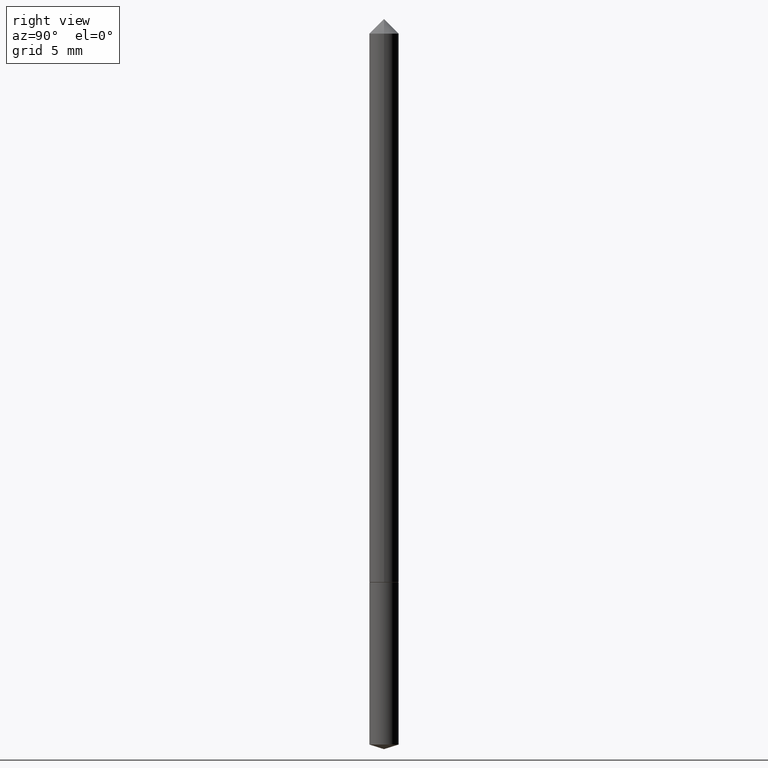
[diagram: clean part render]
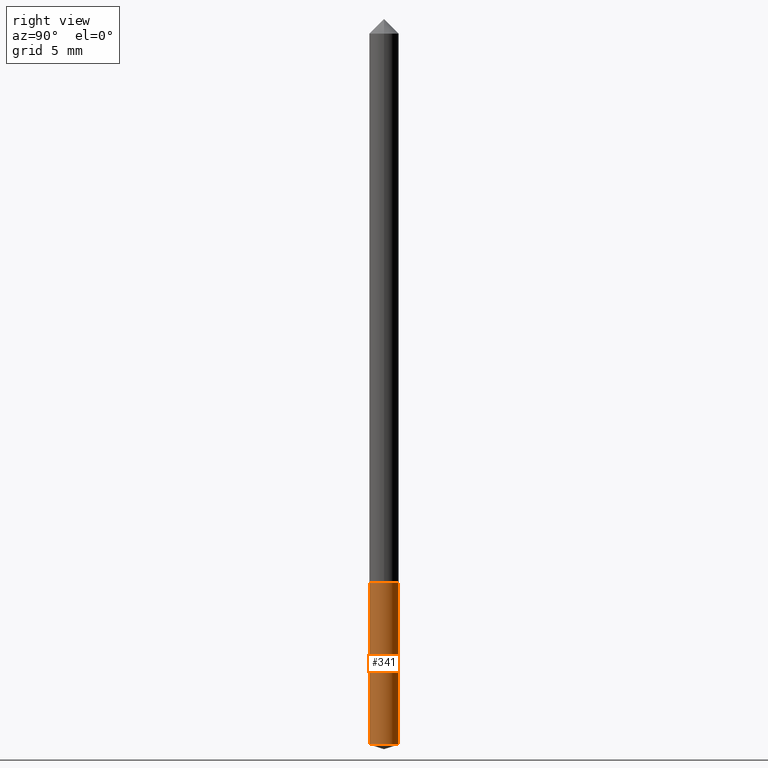
[diagram: same view with one face highlighted and labeled with its STEP entity id]
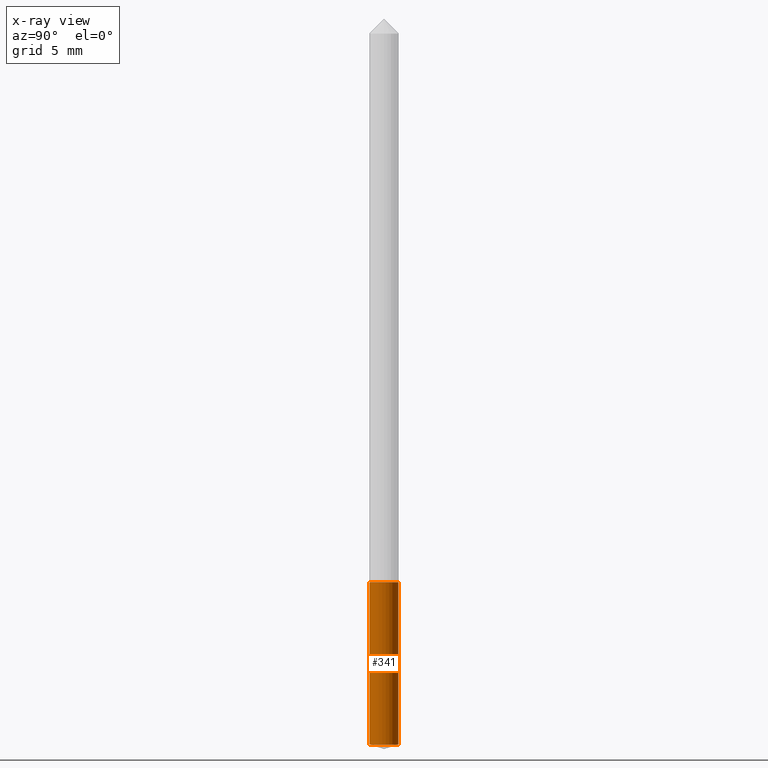
[diagram: x-ray of the same camera — body ghosted, the highlighted face saturated]
A machine part, right view. The second image highlights one B-rep face of the part: STEP entity #341.
The next image is the same camera in x-ray: the body ghosted, the highlighted face saturated — about 0% of this face is hidden behind the body in this view.
In plain terms, the highlighted cylindrical surface (edge-blend (fillet) strip) has radius 0.5994 mm, axis along (-0, 0, 1).
Its self-contained STEP definition (entity closure, byte-faithful):
#1 = CARTESIAN_POINT ( 'NONE',  ( 1.676880856394122855E-16, 0.02359999999999589509, -1.173658948582456452 ) ) ;
#36 = CYLINDRICAL_SURFACE ( 'NONE', #165, 0.02360000000000000292 ) ;
#40 = ORIENTED_EDGE ( 'NONE', *, *, #161, .T. ) ;
#48 = EDGE_CURVE ( 'NONE', #324, #321, #265, .T. ) ;
#53 = ORIENTED_EDGE ( 'NONE', *, *, #48, .F. ) ;
#56 = DIRECTION ( 'NONE',  ( -6.982962677686265133E-15, -1.000000000000000000, 5.787813545898861862E-15 ) ) ;
#63 = DIRECTION ( 'NONE',  ( -6.982962677686265133E-15, -1.000000000000000000, 5.787813545898861862E-15 ) ) ;
#76 = ORIENTED_EDGE ( 'NONE', *, *, #355, .F. ) ;
#91 = DIRECTION ( 'NONE',  ( -2.445339444315170528E-29, 3.491666592403757410E-15, 1.000000000000000000 ) ) ;
#103 = AXIS2_PLACEMENT_3D ( 'NONE', #284, #112, #56 ) ;
#112 = DIRECTION ( 'NONE',  ( -2.445339444315170528E-29, 3.491666592403757410E-15, 1.000000000000000000 ) ) ;
#115 = AXIS2_PLACEMENT_3D ( 'NONE', #178, #91, #63 ) ;
#140 = VERTEX_POINT ( 'NONE', #307 ) ;
#153 = DIRECTION ( 'NONE',  ( -2.445339444315170528E-29, 3.491666592403757410E-15, 1.000000000000000000 ) ) ;
#161 = EDGE_CURVE ( 'NONE', #189, #321, #175, .T. ) ;
#165 = AXIS2_PLACEMENT_3D ( 'NONE', #343, #153, #286 ) ;
#166 = EDGE_LOOP ( 'NONE', ( #350, #40, #53, #76 ) ) ;
#173 = CARTESIAN_POINT ( 'NONE',  ( 1.676880856394059499E-16, 0.02359999999999681450, -0.9133000000000002228 ) ) ;
#175 = LINE ( 'NONE', #173, #176 ) ;
#176 = VECTOR ( 'NONE', #285, 39.37007874015748143 ) ;
#178 = CARTESIAN_POINT ( 'NONE',  ( 2.870112667337990554E-29, -4.097856549564174586E-15, -1.173658948582456230 ) ) ;
#180 = CARTESIAN_POINT ( 'NONE',  ( -1.647979191933735680E-16, -0.02360000000000319134, -0.9132999999999998897 ) ) ;
#189 = VERTEX_POINT ( 'NONE', #1 ) ;
#206 = CARTESIAN_POINT ( 'NONE',  ( 1.676880856394123348E-16, 0.02359999999999681450, -0.9133000000000002228 ) ) ;
#209 = LINE ( 'NONE', #180, #306 ) ;
#212 = DIRECTION ( 'NONE',  ( -2.445339444315170528E-29, 3.491666592403757410E-15, 1.000000000000000000 ) ) ;
#236 = CARTESIAN_POINT ( 'NONE',  ( -1.647979191933735680E-16, -0.02360000000000319134, -0.9132999999999998897 ) ) ;
#253 = CIRCLE ( 'NONE', #115, 0.02360000000000000292 ) ;
#263 = FACE_OUTER_BOUND ( 'NONE', #166, .T. ) ;
#265 = CIRCLE ( 'NONE', #103, 0.02360000000000000292 ) ;
#273 = EDGE_CURVE ( 'NONE', #140, #189, #253, .T. ) ;
#284 = CARTESIAN_POINT ( 'NONE',  ( 2.233446660688885291E-29, -3.188769906765445031E-15, -0.9133000000000001117 ) ) ;
#285 = DIRECTION ( 'NONE',  ( -2.445339444315170528E-29, 3.491666592403757410E-15, 1.000000000000000000 ) ) ;
#286 = DIRECTION ( 'NONE',  ( -6.982962677686265133E-15, -1.000000000000000000, 5.787813545898861862E-15 ) ) ;
#306 = VECTOR ( 'NONE', #212, 39.37007874015748143 ) ;
#307 = CARTESIAN_POINT ( 'NONE',  ( -1.647979191933671339E-16, -0.02360000000000408993, -1.173658948582456008 ) ) ;
#321 = VERTEX_POINT ( 'NONE', #206 ) ;
#324 = VERTEX_POINT ( 'NONE', #236 ) ;
#341 = ADVANCED_FACE ( 'NONE', ( #263 ), #36, .T. ) ;
#343 = CARTESIAN_POINT ( 'NONE',  ( 2.233446660688885291E-29, -3.188769906765445031E-15, -0.9133000000000001117 ) ) ;
#350 = ORIENTED_EDGE ( 'NONE', *, *, #273, .T. ) ;
#355 = EDGE_CURVE ( 'NONE', #140, #324, #209, .T. ) ;